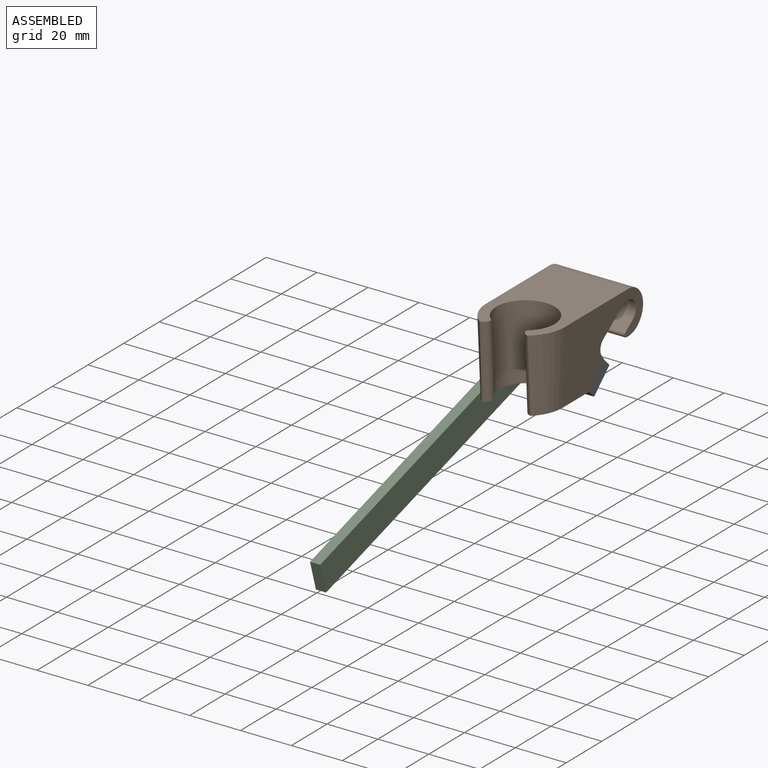
[diagram: assembled view]
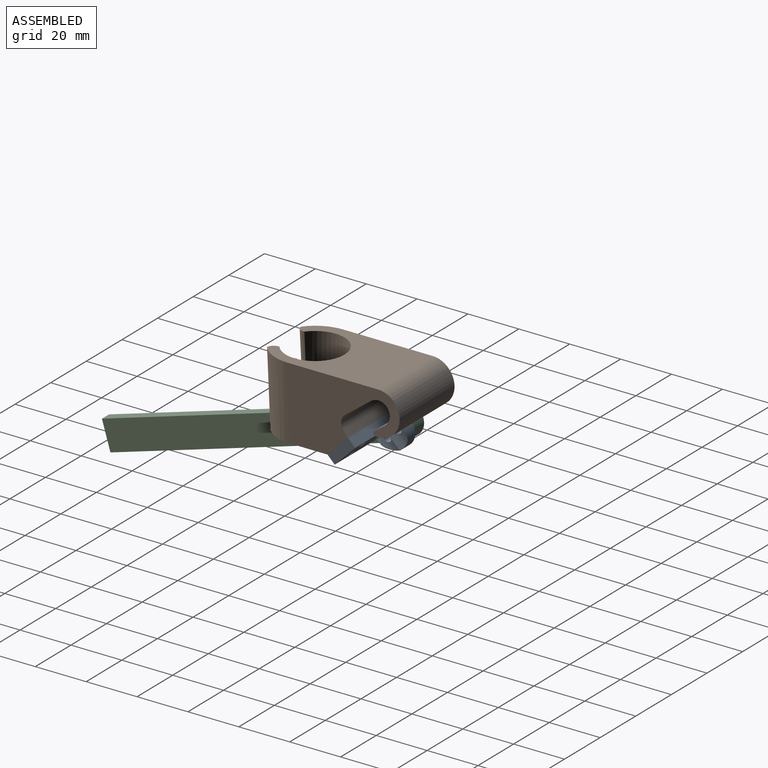
[diagram: assembled view, second angle]
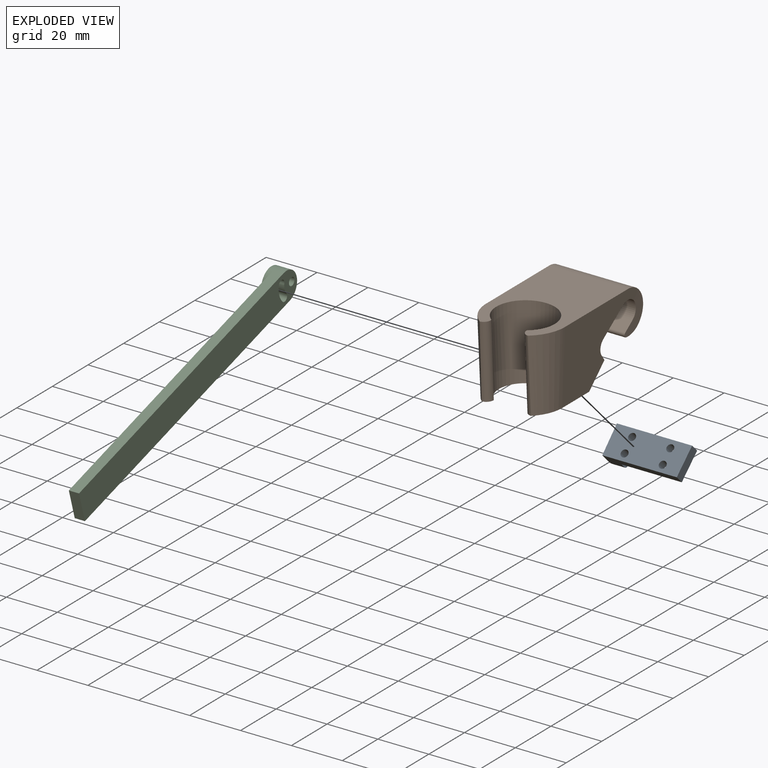
[diagram: exploded view]
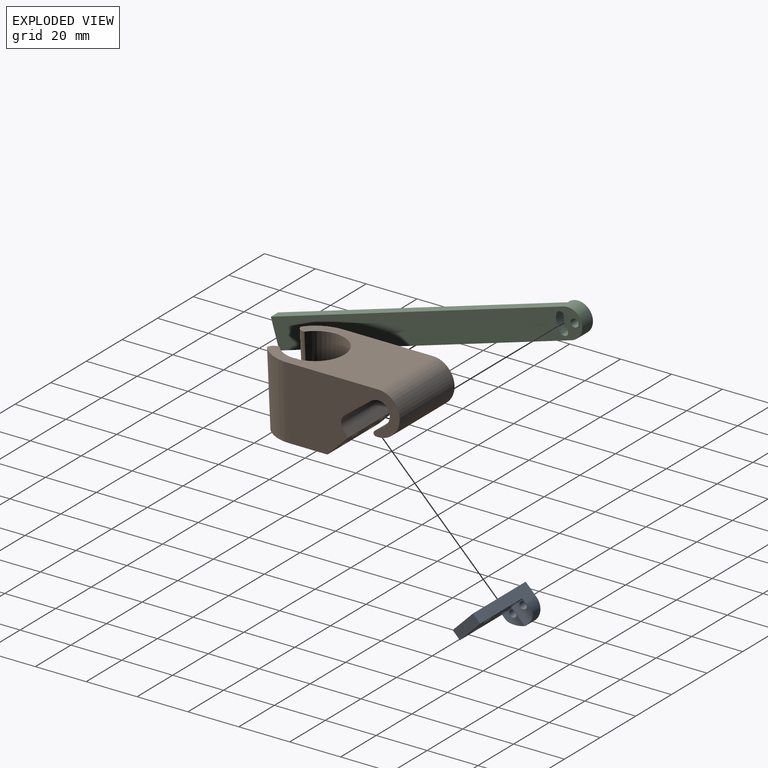
[diagram: exploded view, second angle]
ASSEMBLY  parts=3 mates=2
PART A: 15 faces, bbox 29.6x16.4x16.4 mm
  f0: cylinder r=3.25mm len=9.39mm, axis (0,-0.71,0.71), area 37.5mm2, adj f1,f9,f10,f12,f14
  f1: cylinder r=3.25mm len=9.55mm, axis (0,-0.71,0.71), area 40.1mm2, adj f0,f3,f10,f12,f13
  f2: plane 14x14mm, normal (-1,0,0), area 107.3mm2, adj f3,f9,f11,f12,f13,f14
  f3: plane 29.57x4.1mm, normal (0,0.71,0.71), area 129mm2, adj f1,f2,f4,f10,f11,f12
  f4: plane 11.03x11.03mm, normal (1,-0.02,-0.02), area 46.4mm2, adj f3,f9,f10,f11
  f5: cylinder r=1.43mm len=4.84mm, axis (0,-0.71,0.71), area 35.8mm2, adj f10,f11
  f6: cylinder r=1.43mm len=4.84mm, axis (0,-0.71,0.71), area 35.8mm2, adj f10,f11
  f7: cylinder r=1.43mm len=4.84mm, axis (0,-0.71,0.71), area 35.8mm2, adj f10,f11
  f8: cylinder r=1.43mm len=4.84mm, axis (0,-0.71,0.71), area 35.8mm2, adj f10,f11
  f9: plane 29.28x4.1mm, normal (0,-0.71,-0.71), area 127.2mm2, adj f0,f2,f4,f10,f11,f12
  f10: plane 25.39x8.2mm, normal (0,0.71,-0.71), area 261.3mm2, adj f0,f1,f3,f4,f5,f6,f7,f8
  f11: plane 29.57x8.2mm, normal (0,-0.71,0.71), area 315.7mm2, adj f2,f3,f4,f5,f6,f7,f8,f9
  f12: cylinder r=5.8mm len=9.9mm, axis (-1,0,0), area 88.6mm2, adj f0,f1,f2,f3,f9
  f13: cylinder r=1.43mm len=4.5mm, axis (-1,0,0), area 38.8mm2, adj f1,f2
  f14: cylinder r=1.43mm len=4.62mm, axis (-1,0,0), area 38.9mm2, adj f0,f2
PART B: 29 faces, bbox 32.2x57.5x30.2 mm
  f0: cylinder r=8.5mm len=31mm, axis (1,0,0), area 852.3mm2, adj f4,f5,f6,f15,f16,f17,f18,f20
  f1: cylinder r=4.55mm len=30.66mm, axis (1,0,0), area 440.9mm2, adj f2,f4,f5,f13,f15,f17
  f2: plane 30.64x4.08mm, normal (0,-0.59,0.81), area 154.5mm2, adj f1,f16,f18,f20
  f3: plane 29.57x8.2mm, normal (0,0.71,-0.71), area 314mm2, adj f4,f5,f7,f14,f21,f23,f25,f27
  f4: plane 41.59x29.08mm, normal (1,0,-0.03), area 738.3mm2, adj f0,f1,f3,f6,f7,f8,f13,f14
  f5: plane 41.59x29.08mm, normal (-1,0,-0.03), area 738.3mm2, adj f0,f1,f3,f6,f7,f12,f13,f14
  f6: plane 48.98x32.18mm, normal (0,0,1), area 996.4mm2, adj f0,f4,f5,f8,f9,f10,f11,f12
  f7: plane 29.7x26.51mm, normal (0,0,-1), area 350.5mm2, adj f3,f4,f5,f8,f9,f10,f11,f12
  f8: bspline ~56.3x29mm, area 382.8mm2, adj f4,f6,f7,f9
  f9: bspline ~29x4.47mm, area 129.2mm2, adj f6,f7,f8,f10
  f10: bspline ~29x23.04mm, area 1564.6mm2, adj f6,f7,f9,f11
  f11: bspline ~29x4.47mm, area 129.2mm2, adj f6,f7,f10,f12
  f12: bspline ~56.3x29mm, area 382.8mm2, adj f5,f6,f7,f11
  f13: plane 30.66x10.5mm, normal (0,0.6,-0.8), area 400.3mm2, adj f1,f4,f5,f19
  f14: plane 29.73x2.43mm, normal (0,0.81,0.59), area 89.1mm2, adj f3,f4,f5,f19
  f15: cone r=8.5mm half-angle=88.6deg, axis (-1,0,0), area 44.6mm2, adj f0,f1,f5,f16
  f16: plane 6.84x4.84mm, normal (-1,-0.01,0.02), area 18.9mm2, adj f0,f2,f15,f20
  f17: cone r=4.55mm half-angle=88.6deg, axis (1,0,0), area 44.6mm2, adj f0,f1,f4,f18
  f18: plane 6.84x4.84mm, normal (1,-0.01,0.02), area 18.9mm2, adj f0,f2,f17,f20
  f19: cylinder r=4mm len=30.12mm, axis (-1,0,0), area 185.5mm2, adj f4,f5,f13,f14
  f20: cylinder r=1mm len=30.72mm, axis (1,0,0), area 73.7mm2, adj f0,f2,f16,f18
  f21: cylinder r=1.43mm len=6.97mm, axis (0,0.71,-0.71), area 62.7mm2, adj f3,f22
  f22: cone r=0mm half-angle=59deg, axis (0,0.71,-0.71), area 7.4mm2, adj f21
  f23: cylinder r=1.43mm len=6.97mm, axis (0,0.71,-0.71), area 62.7mm2, adj f3,f24
  f24: cone r=0mm half-angle=59deg, axis (0,0.71,-0.71), area 7.4mm2, adj f23
  f25: cylinder r=1.43mm len=6.97mm, axis (0,0.71,-0.71), area 62.7mm2, adj f3,f26
  f26: cone r=0mm half-angle=59deg, axis (0,0.71,-0.71), area 7.4mm2, adj f25
  f27: cylinder r=1.43mm len=6.97mm, axis (0,0.71,-0.71), area 62.7mm2, adj f3,f28
  f28: cone r=0mm half-angle=59deg, axis (0,0.71,-0.71), area 7.4mm2, adj f27
PART C: 12 faces, bbox 6x94.8x94.8 mm
  f0: cylinder r=5.8mm len=11.6mm, axis (1,0,0), area 145.7mm2, adj f6,f7,f9,f10,f11
  f1: cylinder r=1.55mm len=6mm, axis (1,0,0), area 29.2mm2, adj f2,f4,f6,f7
  f2: cylinder r=7.33mm len=6mm, axis (1,0,0), area 43.5mm2, adj f1,f3,f6,f7
  f3: cylinder r=1.55mm len=6mm, axis (1,0,0), area 29.2mm2, adj f2,f4,f6,f7
  f4: cylinder r=4.23mm len=6mm, axis (1,0,0), area 25.1mm2, adj f1,f3,f6,f7
  f5: cylinder r=1.55mm len=6mm, axis (1,0,0), area 58.4mm2, adj f6,f7
  f6: plane 11.6x11.6mm, normal (-1,0,0), area 72.8mm2, adj f0,f1,f2,f3,f4,f5
  f7: plane 94.75x94.75mm, normal (1,0,0), area 1411.5mm2, adj f0,f1,f2,f3,f4,f5,f8,f9
  f8: plane 8.2x8.2mm, normal (0,-0.71,-0.71), area 46.4mm2, adj f7,f9,f10,f11
  f9: plane 84.85x84.85mm, normal (0,-0.71,0.71), area 480mm2, adj f0,f7,f8,f11
  f10: plane 84.85x84.85mm, normal (0,0.71,-0.71), area 480mm2, adj f0,f7,f8,f11
  f11: plane 93.05x93.05mm, normal (-1,0,0), area 1338.7mm2, adj f0,f8,f9,f10
PLACE A at identity
PLACE B at identity fixed
PLACE C rot(axis=(-1,0,0),28.3deg) t=(0,2.06,12.23)mm
MATE revolute C.f5 <-> A.f13  axis (1,0,0) through (-14.78,25.24,2.04)mm
MATE fastened A.f8 <-> B.f28  axis (0,-0.71,0.71) through (-7.36,21.14,6.14)mm
